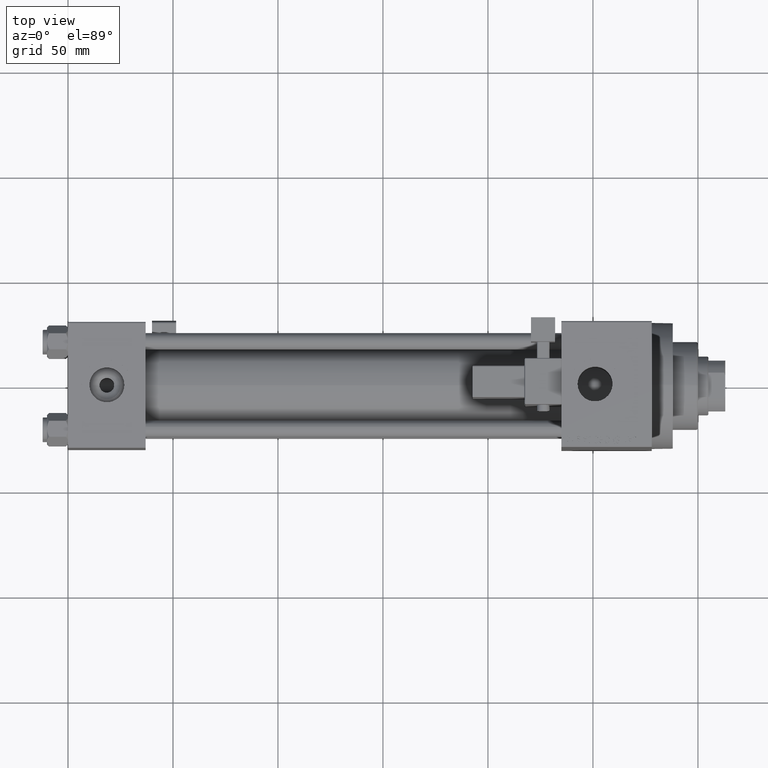
[diagram: clean part render]
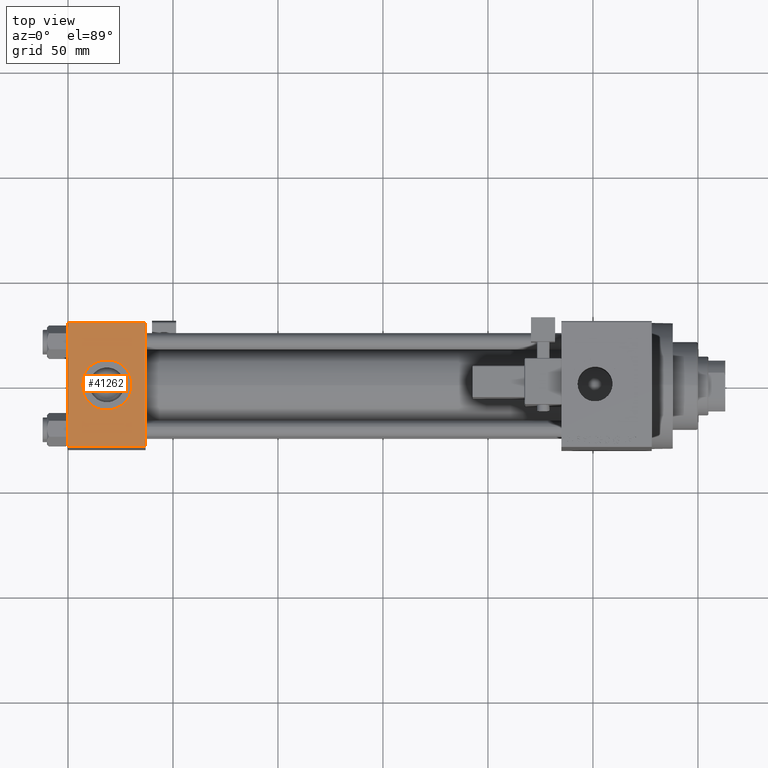
[diagram: same view with one face highlighted and labeled with its STEP entity id]
A machine part, top view. The second image highlights one B-rep face of the part: STEP entity #41262.
In plain terms, the highlighted planar face has unit normal (0, 0, -1).
Its self-contained STEP definition (entity closure, byte-faithful):
#394 = VERTEX_POINT ( 'NONE', #33137 ) ;
#1106 = DIRECTION ( 'NONE',  ( 0.000000000000000000, 1.156482317317871725E-16, -1.000000000000000000 ) ) ;
#1193 = LINE ( 'NONE', #43439, #15794 ) ;
#3081 = EDGE_CURVE ( 'NONE', #394, #36881, #27061, .T. ) ;
#3476 = VERTEX_POINT ( 'NONE', #16300 ) ;
#3595 = ORIENTED_EDGE ( 'NONE', *, *, #19185, .F. ) ;
#4564 = AXIS2_PLACEMENT_3D ( 'NONE', #35564, #1106, #47113 ) ;
#4722 = ORIENTED_EDGE ( 'NONE', *, *, #15241, .F. ) ;
#6775 = DIRECTION ( 'NONE',  ( 1.000000000000000000, 0.000000000000000000, 0.000000000000000000 ) ) ;
#7125 = CARTESIAN_POINT ( 'NONE',  ( 0.000000000000000000, 29.49999999999999289, 30.00000000000000000 ) ) ;
#7505 = ORIENTED_EDGE ( 'NONE', *, *, #3081, .F. ) ;
#8666 = PLANE ( 'NONE',  #4564 ) ;
#9019 = CARTESIAN_POINT ( 'NONE',  ( 0.000000000000000000, 29.49999999999999289, 30.00000000000000000 ) ) ;
#9053 = VECTOR ( 'NONE', #38339, 1000.000000000000000 ) ;
#9616 = VECTOR ( 'NONE', #35432, 1000.000000000000000 ) ;
#11463 = CIRCLE ( 'NONE', #46806, 12.00000000000000000 ) ;
#11585 = CARTESIAN_POINT ( 'NONE',  ( 18.50000000000000000, -3.469446951953614978E-15, 29.99999999999999645 ) ) ;
#11935 = LINE ( 'NONE', #15697, #9053 ) ;
#14561 = ORIENTED_EDGE ( 'NONE', *, *, #47112, .T. ) ;
#15038 = CARTESIAN_POINT ( 'NONE',  ( 0.000000000000000000, -29.49999999999998579, 29.99999999999999289 ) ) ;
#15076 = DIRECTION ( 'NONE',  ( 1.000000000000000000, 0.000000000000000000, 0.000000000000000000 ) ) ;
#15241 = EDGE_CURVE ( 'NONE', #36881, #394, #11463, .T. ) ;
#15697 = CARTESIAN_POINT ( 'NONE',  ( 37.00000000000000000, 29.99999999999999289, 30.00000000000000000 ) ) ;
#15794 = VECTOR ( 'NONE', #35169, 1000.000000000000000 ) ;
#16070 = LINE ( 'NONE', #9019, #9616 ) ;
#16300 = CARTESIAN_POINT ( 'NONE',  ( 37.00000000000000000, -29.49999999999998579, 29.99999999999999289 ) ) ;
#17365 = CARTESIAN_POINT ( 'NONE',  ( 30.50000000000000000, -3.469446951953614978E-15, 29.99999999999999645 ) ) ;
#17835 = CARTESIAN_POINT ( 'NONE',  ( 18.50000000000000000, -3.469446951953614978E-15, 29.99999999999999645 ) ) ;
#18835 = LINE ( 'NONE', #38690, #43148 ) ;
#19185 = EDGE_CURVE ( 'NONE', #46258, #3476, #11935, .T. ) ;
#19689 = VERTEX_POINT ( 'NONE', #15038 ) ;
#20532 = VERTEX_POINT ( 'NONE', #7125 ) ;
#22637 = DIRECTION ( 'NONE',  ( 0.000000000000000000, 0.000000000000000000, 1.000000000000000000 ) ) ;
#24198 = EDGE_LOOP ( 'NONE', ( #4722, #7505 ) ) ;
#25629 = DIRECTION ( 'NONE',  ( 0.000000000000000000, 0.000000000000000000, 1.000000000000000000 ) ) ;
#26265 = AXIS2_PLACEMENT_3D ( 'NONE', #17835, #25629, #6775 ) ;
#26509 = ORIENTED_EDGE ( 'NONE', *, *, #29146, .T. ) ;
#27061 = CIRCLE ( 'NONE', #26265, 12.00000000000000000 ) ;
#27770 = FACE_OUTER_BOUND ( 'NONE', #32992, .T. ) ;
#28342 = EDGE_CURVE ( 'NONE', #20532, #19689, #1193, .T. ) ;
#29146 = EDGE_CURVE ( 'NONE', #19689, #3476, #18835, .T. ) ;
#31550 = FACE_BOUND ( 'NONE', #24198, .T. ) ;
#32992 = EDGE_LOOP ( 'NONE', ( #33734, #26509, #3595, #14561 ) ) ;
#33137 = CARTESIAN_POINT ( 'NONE',  ( 6.499999999999997335, -1.999870792976790833E-15, 29.99999999999999645 ) ) ;
#33734 = ORIENTED_EDGE ( 'NONE', *, *, #28342, .T. ) ;
#35169 = DIRECTION ( 'NONE',  ( 0.000000000000000000, -1.000000000000000000, -1.156482317317871725E-16 ) ) ;
#35432 = DIRECTION ( 'NONE',  ( -1.000000000000000000, 0.000000000000000000, 0.000000000000000000 ) ) ;
#35564 = CARTESIAN_POINT ( 'NONE',  ( 37.00000000000000000, 29.99999999999999289, 30.00000000000000000 ) ) ;
#36881 = VERTEX_POINT ( 'NONE', #17365 ) ;
#38339 = DIRECTION ( 'NONE',  ( 0.000000000000000000, -1.000000000000000000, -1.156482317317871725E-16 ) ) ;
#38690 = CARTESIAN_POINT ( 'NONE',  ( 37.00000000000000000, -29.50000000000000000, 29.99999999999999289 ) ) ;
#41262 = ADVANCED_FACE ( 'NONE', ( #31550, #27770 ), #8666, .F. ) ;
#43148 = VECTOR ( 'NONE', #15076, 1000.000000000000000 ) ;
#43439 = CARTESIAN_POINT ( 'NONE',  ( 0.000000000000000000, 29.99999999999999289, 30.00000000000000000 ) ) ;
#45267 = DIRECTION ( 'NONE',  ( 1.000000000000000000, 0.000000000000000000, 0.000000000000000000 ) ) ;
#46177 = CARTESIAN_POINT ( 'NONE',  ( 37.00000000000000000, 29.49999999999999289, 30.00000000000000000 ) ) ;
#46258 = VERTEX_POINT ( 'NONE', #46177 ) ;
#46806 = AXIS2_PLACEMENT_3D ( 'NONE', #11585, #22637, #45267 ) ;
#47112 = EDGE_CURVE ( 'NONE', #46258, #20532, #16070, .T. ) ;
#47113 = DIRECTION ( 'NONE',  ( 0.000000000000000000, 1.000000000000000000, 1.156482317317871725E-16 ) ) ;